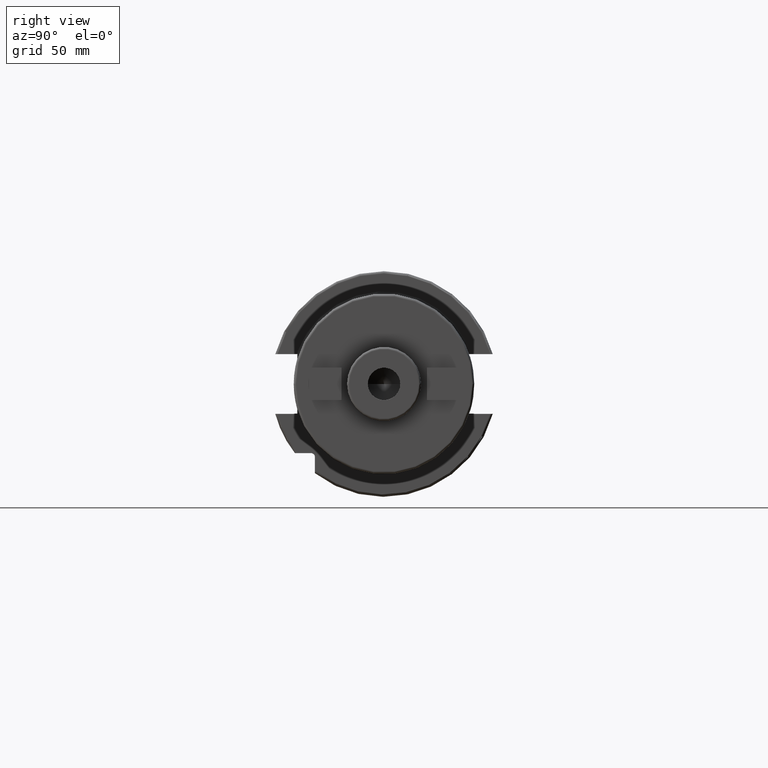
[diagram: clean part render]
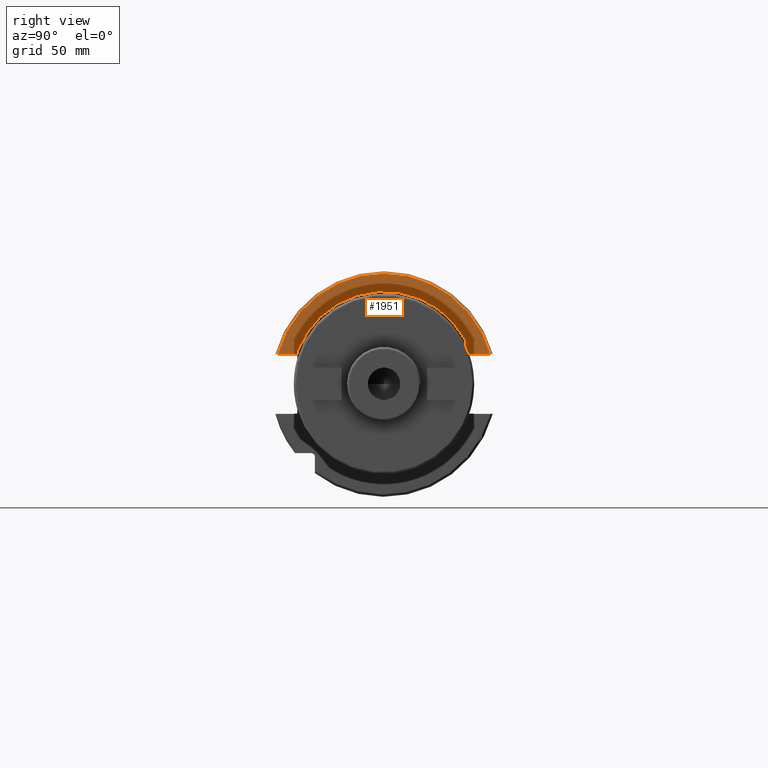
[diagram: same view with one face highlighted and labeled with its STEP entity id]
A machine part, right view. The second image highlights one B-rep face of the part: STEP entity #1951.
In plain terms, the highlighted planar face has unit normal (1, 0, 0).
Its self-contained STEP definition (entity closure, byte-faithful):
#130=DIRECTION('',(0.E0,0.E0,1.E0));
#131=VECTOR('',#130,5.912495847176E0);
#132=CARTESIAN_POINT('',(1.905E1,3.53E1,1.29E1));
#133=LINE('',#132,#131);
#142=DIRECTION('',(0.E0,-1.E0,0.E0));
#143=VECTOR('',#142,8.461493733886E0);
#144=CARTESIAN_POINT('',(1.905E1,-3.75E1,1.29E1));
#145=LINE('',#144,#143);
#146=DIRECTION('',(0.E0,-1.E0,0.E0));
#147=VECTOR('',#146,1.066149373389E1);
#148=CARTESIAN_POINT('',(1.905E1,4.596149373389E1,1.29E1));
#149=LINE('',#148,#147);
#175=CARTESIAN_POINT('',(1.905E1,0.E0,0.E0));
#176=DIRECTION('',(-1.E0,0.E0,0.E0));
#177=DIRECTION('',(0.E0,-9.375E-1,3.479852726769E-1));
#178=AXIS2_PLACEMENT_3D('',#175,#176,#177);
#194=CARTESIAN_POINT('',(1.905E1,3.53E1,1.881249584718E1));
#201=DIRECTION('',(0.E0,0.E0,-1.E0));
#202=VECTOR('',#201,1.019410907075E0);
#203=CARTESIAN_POINT('',(1.905E1,-3.75E1,1.391941090708E1));
#204=LINE('',#203,#202);
#512=CARTESIAN_POINT('',(1.905E1,4.596149373389E1,1.29E1));
#523=CARTESIAN_POINT('',(1.905E1,0.E0,0.E0));
#524=DIRECTION('',(1.E0,0.E0,0.E0));
#525=DIRECTION('',(0.E0,9.627964123359E-1,2.702278083268E-1));
#526=AXIS2_PLACEMENT_3D('',#523,#524,#525);
#537=CARTESIAN_POINT('',(1.905E1,-4.596149373389E1,1.29E1));
#1575=VERTEX_POINT('',#512);
#1576=VERTEX_POINT('',#537);
#1701=VERTEX_POINT('',#194);
#1702=CARTESIAN_POINT('',(1.905E1,3.53E1,1.29E1));
#1703=VERTEX_POINT('',#1702);
#1716=CARTESIAN_POINT('',(1.905E1,-3.75E1,1.29E1));
#1717=VERTEX_POINT('',#1716);
#1718=CARTESIAN_POINT('',(1.905E1,-3.75E1,1.391941090708E1));
#1719=VERTEX_POINT('',#1718);
#1933=CARTESIAN_POINT('',(1.905E1,0.E0,0.E0));
#1934=DIRECTION('',(1.E0,0.E0,0.E0));
#1935=DIRECTION('',(0.E0,-1.E0,0.E0));
#1936=AXIS2_PLACEMENT_3D('',#1933,#1934,#1935);
#1937=PLANE('',#1936);
#1939=ORIENTED_EDGE('',*,*,#1938,.F.);
#1941=ORIENTED_EDGE('',*,*,#1940,.T.);
#1943=ORIENTED_EDGE('',*,*,#1942,.T.);
#1945=ORIENTED_EDGE('',*,*,#1944,.F.);
#1947=ORIENTED_EDGE('',*,*,#1946,.T.);
#1948=ORIENTED_EDGE('',*,*,#1884,.T.);
#1949=EDGE_LOOP('',(#1939,#1941,#1943,#1945,#1947,#1948));
#1950=FACE_OUTER_BOUND('',#1949,.F.);
#1951=ADVANCED_FACE('',(#1950),#1937,.T.);
#179=CIRCLE('',#178,4.E1);
#527=CIRCLE('',#526,4.77375E1);
#1884=EDGE_CURVE('',#1703,#1701,#133,.T.);
#1938=EDGE_CURVE('',#1719,#1701,#179,.T.);
#1940=EDGE_CURVE('',#1719,#1717,#204,.T.);
#1942=EDGE_CURVE('',#1717,#1576,#145,.T.);
#1944=EDGE_CURVE('',#1575,#1576,#527,.T.);
#1946=EDGE_CURVE('',#1575,#1703,#149,.T.);